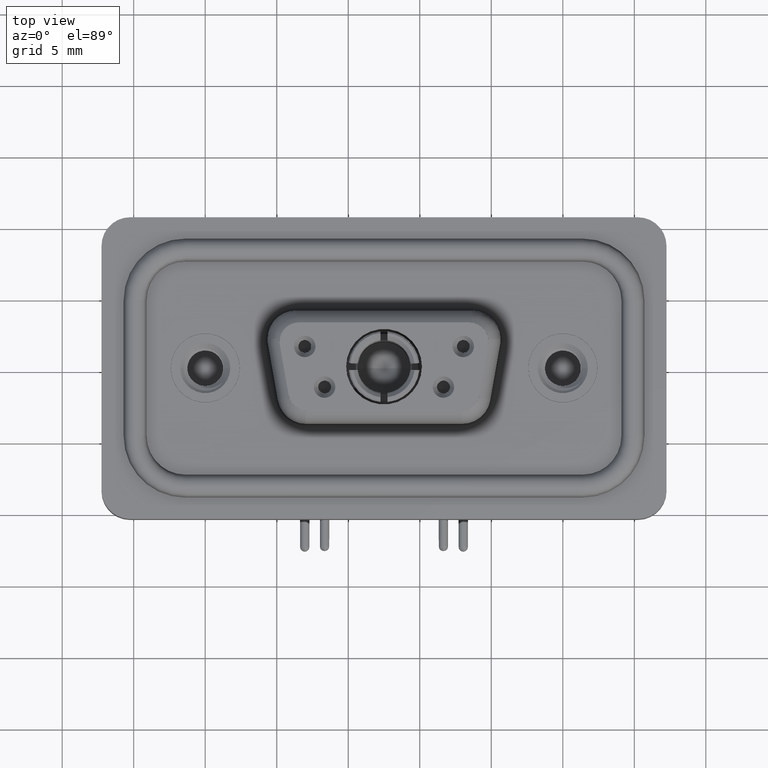
[diagram: clean part render]
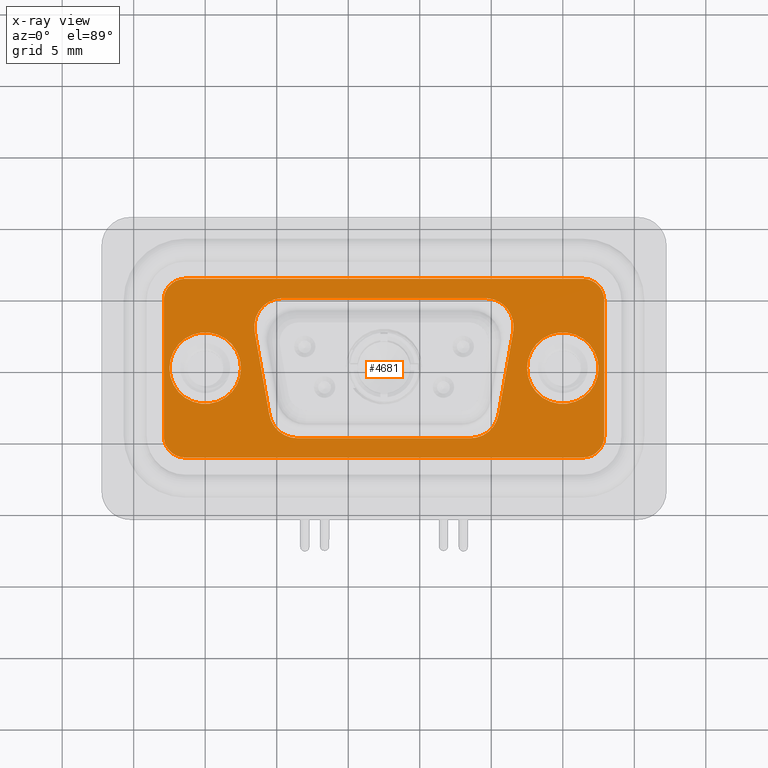
[diagram: x-ray — body ghosted, one internal face saturated and labeled with its STEP entity id]
A machine part, top view, then the same camera in x-ray: the body is ghosted and one INTERNAL B-rep face — a face not visible from any outside direction — is saturated and labeled: STEP entity #4681.
In plain terms, the highlighted planar face has unit normal (0, 0, 1).
Its self-contained STEP definition (entity closure, byte-faithful):
#78 = CARTESIAN_POINT ( 'NONE',  ( 6.453669584095838019, -2.899999999999999911, 0.000000000000000000 ) ) ;
#318 = VECTOR ( 'NONE', #16603, 1000.000000000000000 ) ;
#899 = ORIENTED_EDGE ( 'NONE', *, *, #990, .F. ) ;
#990 = EDGE_CURVE ( 'NONE', #6343, #2413, #8956, .T. ) ;
#1146 = DIRECTION ( 'NONE',  ( -1.000000000000000000, 0.000000000000000000, 0.000000000000000000 ) ) ;
#1283 = CARTESIAN_POINT ( 'NONE',  ( 22.50000000000000000, 4.898587196589412237E-15, 0.000000000000000000 ) ) ;
#1313 = DIRECTION ( 'NONE',  ( 1.000000000000000000, 0.000000000000000000, -0.000000000000000000 ) ) ;
#1418 = EDGE_CURVE ( 'NONE', #12071, #1452, #5996, .T. ) ;
#1446 = AXIS2_PLACEMENT_3D ( 'NONE', #12666, #19167, #18748 ) ;
#1452 = VERTEX_POINT ( 'NONE', #16900 ) ;
#1465 = CARTESIAN_POINT ( 'NONE',  ( 25.00000000000000000, 4.592425496802573578E-15, 0.000000000000000000 ) ) ;
#1496 = CARTESIAN_POINT ( 'NONE',  ( -1.399999999999999245, 6.250000000000000000, 0.000000000000000000 ) ) ;
#1511 = ORIENTED_EDGE ( 'NONE', *, *, #11314, .T. ) ;
#1531 = EDGE_CURVE ( 'NONE', #10782, #3198, #4280, .T. ) ;
#1604 = EDGE_CURVE ( 'NONE', #14853, #4916, #12192, .T. ) ;
#1730 = CARTESIAN_POINT ( 'NONE',  ( -1.399999999999999245, 4.750000000000000888, 0.000000000000000000 ) ) ;
#1942 = ORIENTED_EDGE ( 'NONE', *, *, #19070, .F. ) ;
#2050 = ORIENTED_EDGE ( 'NONE', *, *, #4963, .T. ) ;
#2145 = VECTOR ( 'NONE', #19839, 1000.000000000000000 ) ;
#2257 = CARTESIAN_POINT ( 'NONE',  ( 0.000000000000000000, 0.000000000000000000, 0.000000000000000000 ) ) ;
#2282 = AXIS2_PLACEMENT_3D ( 'NONE', #2257, #19751, #8628 ) ;
#2387 = EDGE_CURVE ( 'NONE', #13641, #7687, #4190, .T. ) ;
#2413 = VERTEX_POINT ( 'NONE', #15283 ) ;
#2578 = DIRECTION ( 'NONE',  ( 0.000000000000000000, 0.000000000000000000, 1.000000000000000000 ) ) ;
#2679 = CARTESIAN_POINT ( 'NONE',  ( 26.40000000000000213, -4.749999999999999112, 0.000000000000000000 ) ) ;
#3120 = CARTESIAN_POINT ( 'NONE',  ( 19.55902690401320498, 2.899999999999999023, 0.000000000000000000 ) ) ;
#3198 = VERTEX_POINT ( 'NONE', #1283 ) ;
#3307 = VERTEX_POINT ( 'NONE', #8288 ) ;
#3413 = EDGE_CURVE ( 'NONE', #2413, #3307, #14472, .T. ) ;
#3692 = VECTOR ( 'NONE', #16598, 1000.000000000000000 ) ;
#3812 = EDGE_CURVE ( 'NONE', #3198, #10782, #7134, .T. ) ;
#3813 = VERTEX_POINT ( 'NONE', #11091 ) ;
#3830 = LINE ( 'NONE', #10096, #11618 ) ;
#4059 = AXIS2_PLACEMENT_3D ( 'NONE', #6238, #11044, #20379 ) ;
#4183 = DIRECTION ( 'NONE',  ( 0.000000000000000000, 0.000000000000000000, 1.000000000000000000 ) ) ;
#4190 = LINE ( 'NONE', #8885, #15884 ) ;
#4280 = CIRCLE ( 'NONE', #5949, 2.500000000000002220 ) ;
#4322 = EDGE_CURVE ( 'NONE', #1452, #12071, #16812, .T. ) ;
#4507 = AXIS2_PLACEMENT_3D ( 'NONE', #2679, #9142, #5804 ) ;
#4681 = ADVANCED_FACE ( 'NONE', ( #7590, #7381, #13983, #20378 ), #10827, .T. ) ;
#4800 = DIRECTION ( 'NONE',  ( 1.000000000000000000, 0.000000000000000000, 0.000000000000000000 ) ) ;
#4808 = DIRECTION ( 'NONE',  ( 0.000000000000000000, 0.000000000000000000, 1.000000000000000000 ) ) ;
#4856 = CARTESIAN_POINT ( 'NONE',  ( 5.430973095986779242, 2.899999999999997247, 0.000000000000000000 ) ) ;
#4916 = VERTEX_POINT ( 'NONE', #13237 ) ;
#4963 = EDGE_CURVE ( 'NONE', #15074, #13918, #11451, .T. ) ;
#5112 = DIRECTION ( 'NONE',  ( 1.000000000000000000, 0.000000000000000000, 0.000000000000000000 ) ) ;
#5469 = AXIS2_PLACEMENT_3D ( 'NONE', #9257, #15652, #1313 ) ;
#5481 = EDGE_CURVE ( 'NONE', #13041, #11913, #8945, .T. ) ;
#5644 = CIRCLE ( 'NONE', #16338, 1.499999999999997780 ) ;
#5676 = EDGE_LOOP ( 'NONE', ( #1511, #7003, #10343, #16914, #10382, #2050, #9353, #8487 ) ) ;
#5722 = DIRECTION ( 'NONE',  ( -1.000000000000000000, 0.000000000000000000, 0.000000000000000000 ) ) ;
#5804 = DIRECTION ( 'NONE',  ( 1.000000000000000000, 0.000000000000000000, 0.000000000000000000 ) ) ;
#5945 = CARTESIAN_POINT ( 'NONE',  ( 18.53633041590415331, -4.899999999999999467, 0.000000000000000000 ) ) ;
#5949 = AXIS2_PLACEMENT_3D ( 'NONE', #7684, #2578, #15431 ) ;
#5996 = CIRCLE ( 'NONE', #2282, 2.500000000000000000 ) ;
#6238 = CARTESIAN_POINT ( 'NONE',  ( 19.55902690401320498, 2.899999999999999023, 0.000000000000000000 ) ) ;
#6286 = ORIENTED_EDGE ( 'NONE', *, *, #10038, .F. ) ;
#6343 = VERTEX_POINT ( 'NONE', #5945 ) ;
#6417 = DIRECTION ( 'NONE',  ( 0.000000000000000000, 0.000000000000000000, 1.000000000000000000 ) ) ;
#6516 = CIRCLE ( 'NONE', #4507, 1.499999999999997780 ) ;
#6536 = CIRCLE ( 'NONE', #13553, 1.999999999999999112 ) ;
#6633 = VECTOR ( 'NONE', #20266, 1000.000000000000000 ) ;
#6677 = CARTESIAN_POINT ( 'NONE',  ( -1.399999999999999245, -4.749999999999999112, 0.000000000000000000 ) ) ;
#6941 = CARTESIAN_POINT ( 'NONE',  ( 6.453669584095838019, -4.899999999999999467, 0.000000000000000000 ) ) ;
#7003 = ORIENTED_EDGE ( 'NONE', *, *, #2387, .T. ) ;
#7134 = CIRCLE ( 'NONE', #18845, 2.500000000000002220 ) ;
#7301 = VERTEX_POINT ( 'NONE', #7879 ) ;
#7381 = FACE_BOUND ( 'NONE', #13979, .T. ) ;
#7590 = FACE_BOUND ( 'NONE', #11337, .T. ) ;
#7623 = CARTESIAN_POINT ( 'NONE',  ( 26.40000000000000213, 4.750000000000000888, 0.000000000000000000 ) ) ;
#7684 = CARTESIAN_POINT ( 'NONE',  ( 25.00000000000000000, 4.592425496802573578E-15, 0.000000000000000000 ) ) ;
#7687 = VERTEX_POINT ( 'NONE', #1496 ) ;
#7879 = CARTESIAN_POINT ( 'NONE',  ( 5.430973095986779242, 4.899999999999996803, 0.000000000000000000 ) ) ;
#8082 = ORIENTED_EDGE ( 'NONE', *, *, #3812, .F. ) ;
#8156 = EDGE_CURVE ( 'NONE', #9278, #13066, #10124, .T. ) ;
#8288 = CARTESIAN_POINT ( 'NONE',  ( 21.52864241003763013, 2.552703644666151295, 0.000000000000000000 ) ) ;
#8337 = CARTESIAN_POINT ( 'NONE',  ( 21.55902690401320498, 2.899999999999999023, 0.000000000000000000 ) ) ;
#8487 = ORIENTED_EDGE ( 'NONE', *, *, #1604, .T. ) ;
#8617 = EDGE_CURVE ( 'NONE', #3307, #15669, #13088, .T. ) ;
#8628 = DIRECTION ( 'NONE',  ( 1.000000000000000000, 0.000000000000000000, 0.000000000000000000 ) ) ;
#8725 = EDGE_CURVE ( 'NONE', #7687, #13041, #12092, .T. ) ;
#8746 = CARTESIAN_POINT ( 'NONE',  ( 19.55902690401320498, 4.899999999999998579, 0.000000000000000000 ) ) ;
#8780 = CARTESIAN_POINT ( 'NONE',  ( 26.40000000000000213, 6.250000000000000000, 0.000000000000000000 ) ) ;
#8885 = CARTESIAN_POINT ( 'NONE',  ( 26.40000000000000213, 6.250000000000000000, 0.000000000000000000 ) ) ;
#8904 = LINE ( 'NONE', #9006, #18369 ) ;
#8945 = LINE ( 'NONE', #12003, #3692 ) ;
#8956 = CIRCLE ( 'NONE', #20021, 1.999999999999998224 ) ;
#9006 = CARTESIAN_POINT ( 'NONE',  ( 6.453669584095838019, -4.899999999999999467, 0.000000000000000000 ) ) ;
#9142 = DIRECTION ( 'NONE',  ( 0.000000000000000000, 0.000000000000000000, 1.000000000000000000 ) ) ;
#9216 = CARTESIAN_POINT ( 'NONE',  ( 27.50000000000000355, 4.592425496802573578E-15, 0.000000000000000000 ) ) ;
#9257 = CARTESIAN_POINT ( 'NONE',  ( 26.40000000000000213, 4.750000000000000888, 0.000000000000000000 ) ) ;
#9278 = VERTEX_POINT ( 'NONE', #19199 ) ;
#9325 = AXIS2_PLACEMENT_3D ( 'NONE', #6677, #4808, #5112 ) ;
#9353 = ORIENTED_EDGE ( 'NONE', *, *, #14062, .T. ) ;
#10038 = EDGE_CURVE ( 'NONE', #3813, #9278, #3830, .T. ) ;
#10096 = CARTESIAN_POINT ( 'NONE',  ( 3.461357589962363424, 2.552703644666150407, 0.000000000000000000 ) ) ;
#10124 = CIRCLE ( 'NONE', #18488, 2.000000000000000000 ) ;
#10332 = ORIENTED_EDGE ( 'NONE', *, *, #8617, .F. ) ;
#10343 = ORIENTED_EDGE ( 'NONE', *, *, #8725, .T. ) ;
#10382 = ORIENTED_EDGE ( 'NONE', *, *, #11515, .T. ) ;
#10782 = VERTEX_POINT ( 'NONE', #9216 ) ;
#10827 = PLANE ( 'NONE',  #5469 ) ;
#11044 = DIRECTION ( 'NONE',  ( 0.000000000000000000, 0.000000000000000000, 1.000000000000000000 ) ) ;
#11091 = CARTESIAN_POINT ( 'NONE',  ( 3.461357589962363424, 2.552703644666150407, 0.000000000000000000 ) ) ;
#11168 = ORIENTED_EDGE ( 'NONE', *, *, #3413, .F. ) ;
#11235 = DIRECTION ( 'NONE',  ( -1.000000000000000000, 0.000000000000000000, 0.000000000000000000 ) ) ;
#11267 = DIRECTION ( 'NONE',  ( 1.000000000000000000, 0.000000000000000000, 0.000000000000000000 ) ) ;
#11314 = EDGE_CURVE ( 'NONE', #4916, #13641, #5644, .T. ) ;
#11337 = EDGE_LOOP ( 'NONE', ( #18754, #8082 ) ) ;
#11396 = CARTESIAN_POINT ( 'NONE',  ( 26.40000000000000213, -6.249999999999998224, 0.000000000000000000 ) ) ;
#11420 = CARTESIAN_POINT ( 'NONE',  ( 27.90000000000000213, -4.749999999999999112, 0.000000000000000000 ) ) ;
#11421 = CARTESIAN_POINT ( 'NONE',  ( 21.52864241003763013, 2.552703644666151295, 0.000000000000000000 ) ) ;
#11451 = LINE ( 'NONE', #16679, #2145 ) ;
#11515 = EDGE_CURVE ( 'NONE', #11913, #15074, #17354, .T. ) ;
#11618 = VECTOR ( 'NONE', #13342, 1000.000000000000114 ) ;
#11623 = EDGE_CURVE ( 'NONE', #17337, #7301, #19870, .T. ) ;
#11790 = ORIENTED_EDGE ( 'NONE', *, *, #11933, .F. ) ;
#11913 = VERTEX_POINT ( 'NONE', #16868 ) ;
#11933 = EDGE_CURVE ( 'NONE', #13066, #6343, #8904, .T. ) ;
#12003 = CARTESIAN_POINT ( 'NONE',  ( -2.899999999999999023, 4.750000000000000888, 0.000000000000000000 ) ) ;
#12071 = VERTEX_POINT ( 'NONE', #14654 ) ;
#12092 = CIRCLE ( 'NONE', #17447, 1.499999999999999556 ) ;
#12192 = LINE ( 'NONE', #18587, #6633 ) ;
#12666 = CARTESIAN_POINT ( 'NONE',  ( 0.000000000000000000, 0.000000000000000000, 0.000000000000000000 ) ) ;
#12930 = DIRECTION ( 'NONE',  ( 1.000000000000000000, 0.000000000000000000, 0.000000000000000000 ) ) ;
#13041 = VERTEX_POINT ( 'NONE', #14387 ) ;
#13066 = VERTEX_POINT ( 'NONE', #6941 ) ;
#13088 = CIRCLE ( 'NONE', #4059, 2.000000000000001776 ) ;
#13092 = AXIS2_PLACEMENT_3D ( 'NONE', #3120, #4183, #11267 ) ;
#13109 = CIRCLE ( 'NONE', #13092, 2.000000000000001776 ) ;
#13237 = CARTESIAN_POINT ( 'NONE',  ( 27.90000000000000213, 4.750000000000000888, 0.000000000000000000 ) ) ;
#13342 = DIRECTION ( 'NONE',  ( 0.1736481776669236976, -0.9848077530122092416, 0.000000000000000000 ) ) ;
#13553 = AXIS2_PLACEMENT_3D ( 'NONE', #4856, #6417, #11235 ) ;
#13641 = VERTEX_POINT ( 'NONE', #8780 ) ;
#13694 = CARTESIAN_POINT ( 'NONE',  ( 18.53633041590415331, -2.899999999999999911, 0.000000000000000000 ) ) ;
#13811 = DIRECTION ( 'NONE',  ( 1.000000000000000000, 0.000000000000000000, 0.000000000000000000 ) ) ;
#13918 = VERTEX_POINT ( 'NONE', #11396 ) ;
#13979 = EDGE_LOOP ( 'NONE', ( #17194, #14338 ) ) ;
#13983 = FACE_BOUND ( 'NONE', #19795, .T. ) ;
#14049 = ORIENTED_EDGE ( 'NONE', *, *, #8156, .F. ) ;
#14062 = EDGE_CURVE ( 'NONE', #13918, #14853, #6516, .T. ) ;
#14265 = DIRECTION ( 'NONE',  ( 0.1736481776669237809, 0.9848077530122092416, -0.000000000000000000 ) ) ;
#14338 = ORIENTED_EDGE ( 'NONE', *, *, #1418, .F. ) ;
#14387 = CARTESIAN_POINT ( 'NONE',  ( -2.899999999999999023, 4.750000000000000888, 0.000000000000000000 ) ) ;
#14472 = LINE ( 'NONE', #11421, #20517 ) ;
#14558 = DIRECTION ( 'NONE',  ( 0.000000000000000000, 0.000000000000000000, 1.000000000000000000 ) ) ;
#14654 = CARTESIAN_POINT ( 'NONE',  ( -2.500000000000000000, 3.061616997868382648E-16, 0.000000000000000000 ) ) ;
#14853 = VERTEX_POINT ( 'NONE', #11420 ) ;
#15074 = VERTEX_POINT ( 'NONE', #19165 ) ;
#15203 = CARTESIAN_POINT ( 'NONE',  ( 19.55902690401320498, 4.899999999999998579, 0.000000000000000000 ) ) ;
#15283 = CARTESIAN_POINT ( 'NONE',  ( 20.50594592192857135, -3.247296355333846751, 0.000000000000000000 ) ) ;
#15431 = DIRECTION ( 'NONE',  ( 1.000000000000000000, 0.000000000000000000, 0.000000000000000000 ) ) ;
#15652 = DIRECTION ( 'NONE',  ( 0.000000000000000000, 0.000000000000000000, 1.000000000000000000 ) ) ;
#15669 = VERTEX_POINT ( 'NONE', #8337 ) ;
#15884 = VECTOR ( 'NONE', #1146, 1000.000000000000000 ) ;
#15894 = DIRECTION ( 'NONE',  ( 0.000000000000000000, 0.000000000000000000, 1.000000000000000000 ) ) ;
#16260 = ORIENTED_EDGE ( 'NONE', *, *, #19586, .F. ) ;
#16338 = AXIS2_PLACEMENT_3D ( 'NONE', #7623, #15894, #13811 ) ;
#16598 = DIRECTION ( 'NONE',  ( -4.565061778886334783E-17, -1.000000000000000000, 0.000000000000000000 ) ) ;
#16603 = DIRECTION ( 'NONE',  ( -1.000000000000000000, -1.227857353566473907E-16, 0.000000000000000000 ) ) ;
#16679 = CARTESIAN_POINT ( 'NONE',  ( -1.399999999999999467, -6.249999999999999112, 0.000000000000000000 ) ) ;
#16812 = CIRCLE ( 'NONE', #1446, 2.500000000000000000 ) ;
#16868 = CARTESIAN_POINT ( 'NONE',  ( -2.899999999999999911, -4.749999999999999112, 0.000000000000000000 ) ) ;
#16900 = CARTESIAN_POINT ( 'NONE',  ( 2.500000000000000000, 0.000000000000000000, 0.000000000000000000 ) ) ;
#16914 = ORIENTED_EDGE ( 'NONE', *, *, #5481, .T. ) ;
#17194 = ORIENTED_EDGE ( 'NONE', *, *, #4322, .F. ) ;
#17337 = VERTEX_POINT ( 'NONE', #15203 ) ;
#17354 = CIRCLE ( 'NONE', #9325, 1.500000000000000222 ) ;
#17447 = AXIS2_PLACEMENT_3D ( 'NONE', #1730, #19742, #12930 ) ;
#17587 = DIRECTION ( 'NONE',  ( 1.000000000000000000, 0.000000000000000000, 0.000000000000000000 ) ) ;
#18369 = VECTOR ( 'NONE', #19930, 1000.000000000000000 ) ;
#18488 = AXIS2_PLACEMENT_3D ( 'NONE', #78, #19144, #4800 ) ;
#18587 = CARTESIAN_POINT ( 'NONE',  ( 27.90000000000000213, -4.749999999999999112, 0.000000000000000000 ) ) ;
#18748 = DIRECTION ( 'NONE',  ( 1.000000000000000000, 0.000000000000000000, 0.000000000000000000 ) ) ;
#18754 = ORIENTED_EDGE ( 'NONE', *, *, #1531, .F. ) ;
#18845 = AXIS2_PLACEMENT_3D ( 'NONE', #1465, #14558, #17587 ) ;
#19070 = EDGE_CURVE ( 'NONE', #7301, #3813, #6536, .T. ) ;
#19144 = DIRECTION ( 'NONE',  ( 0.000000000000000000, 0.000000000000000000, 1.000000000000000000 ) ) ;
#19165 = CARTESIAN_POINT ( 'NONE',  ( -1.399999999999999467, -6.249999999999999112, 0.000000000000000000 ) ) ;
#19167 = DIRECTION ( 'NONE',  ( 0.000000000000000000, 0.000000000000000000, 1.000000000000000000 ) ) ;
#19199 = CARTESIAN_POINT ( 'NONE',  ( 4.484054078071419092, -3.247296355333846751, 0.000000000000000000 ) ) ;
#19586 = EDGE_CURVE ( 'NONE', #15669, #17337, #13109, .T. ) ;
#19742 = DIRECTION ( 'NONE',  ( 0.000000000000000000, 0.000000000000000000, 1.000000000000000000 ) ) ;
#19751 = DIRECTION ( 'NONE',  ( 0.000000000000000000, 0.000000000000000000, 1.000000000000000000 ) ) ;
#19777 = ORIENTED_EDGE ( 'NONE', *, *, #11623, .F. ) ;
#19795 = EDGE_LOOP ( 'NONE', ( #10332, #11168, #899, #11790, #14049, #6286, #1942, #19777, #16260 ) ) ;
#19839 = DIRECTION ( 'NONE',  ( 1.000000000000000000, -3.120006251756846999E-17, 0.000000000000000000 ) ) ;
#19870 = LINE ( 'NONE', #8746, #318 ) ;
#19930 = DIRECTION ( 'NONE',  ( 1.000000000000000000, 0.000000000000000000, 0.000000000000000000 ) ) ;
#20021 = AXIS2_PLACEMENT_3D ( 'NONE', #13694, #20080, #5722 ) ;
#20080 = DIRECTION ( 'NONE',  ( 0.000000000000000000, 0.000000000000000000, 1.000000000000000000 ) ) ;
#20266 = DIRECTION ( 'NONE',  ( 0.000000000000000000, 1.000000000000000000, 0.000000000000000000 ) ) ;
#20378 = FACE_OUTER_BOUND ( 'NONE', #5676, .T. ) ;
#20379 = DIRECTION ( 'NONE',  ( 1.000000000000000000, 0.000000000000000000, 0.000000000000000000 ) ) ;
#20517 = VECTOR ( 'NONE', #14265, 1000.000000000000114 ) ;